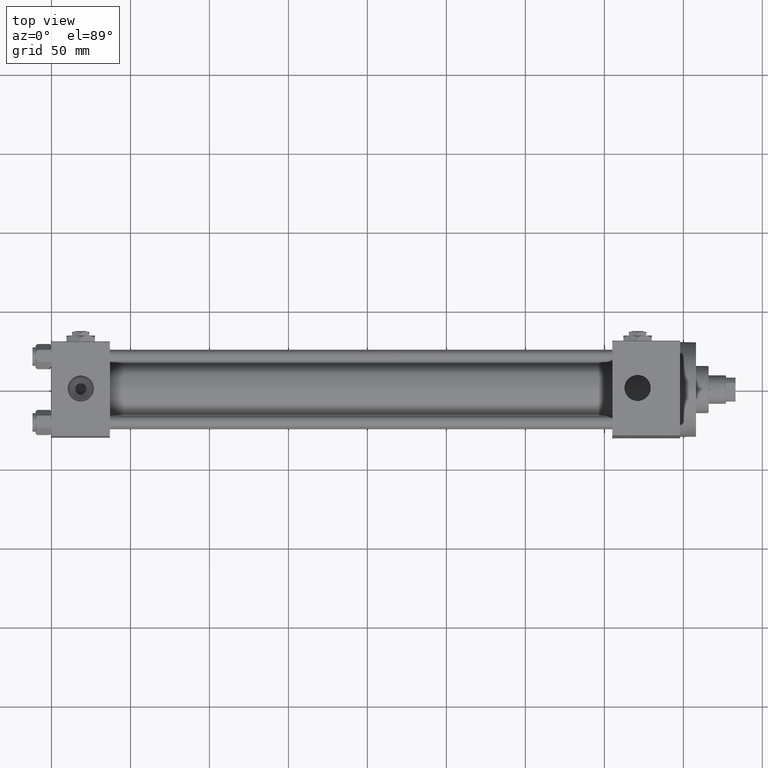
[diagram: clean part render]
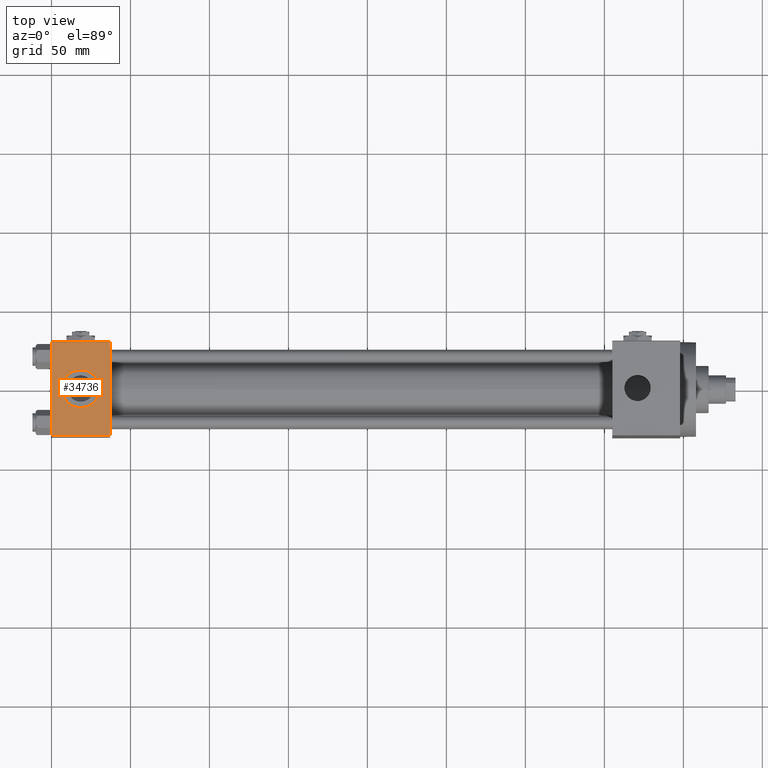
[diagram: same view with one face highlighted and labeled with its STEP entity id]
A machine part, top view. The second image highlights one B-rep face of the part: STEP entity #34736.
In plain terms, the highlighted planar face has unit normal (0, 0, -1).
Its self-contained STEP definition (entity closure, byte-faithful):
#1199 = VERTEX_POINT ( 'NONE', #3615 ) ;
#1559 = AXIS2_PLACEMENT_3D ( 'NONE', #17873, #37035, #18365 ) ;
#1744 = DIRECTION ( 'NONE',  ( 0.000000000000000000, -1.000000000000000000, -1.156482317317871725E-16 ) ) ;
#3615 = CARTESIAN_POINT ( 'NONE',  ( 0.000000000000000000, 29.49999999999999289, 30.00000000000000000 ) ) ;
#3898 = CARTESIAN_POINT ( 'NONE',  ( 30.50000000000000000, -3.469446951953614978E-15, 29.99999999999999645 ) ) ;
#5659 = LINE ( 'NONE', #27865, #40979 ) ;
#5898 = VERTEX_POINT ( 'NONE', #6574 ) ;
#6574 = CARTESIAN_POINT ( 'NONE',  ( 0.000000000000000000, -29.49999999999998579, 29.99999999999999289 ) ) ;
#6651 = AXIS2_PLACEMENT_3D ( 'NONE', #42556, #42070, #45553 ) ;
#7404 = ORIENTED_EDGE ( 'NONE', *, *, #22549, .T. ) ;
#7668 = DIRECTION ( 'NONE',  ( 0.000000000000000000, 1.000000000000000000, 1.156482317317871725E-16 ) ) ;
#8404 = ORIENTED_EDGE ( 'NONE', *, *, #22398, .F. ) ;
#8552 = CARTESIAN_POINT ( 'NONE',  ( 0.000000000000000000, 29.49999999999999289, 30.00000000000000000 ) ) ;
#9203 = EDGE_LOOP ( 'NONE', ( #7404, #45040, #29925, #25383 ) ) ;
#9484 = CARTESIAN_POINT ( 'NONE',  ( 37.00000000000000000, 29.99999999999999289, 30.00000000000000000 ) ) ;
#10739 = EDGE_CURVE ( 'NONE', #36564, #31595, #13510, .T. ) ;
#12747 = LINE ( 'NONE', #9484, #36283 ) ;
#13510 = CIRCLE ( 'NONE', #1559, 12.00000000000000000 ) ;
#17873 = CARTESIAN_POINT ( 'NONE',  ( 18.50000000000000000, -3.469446951953614978E-15, 29.99999999999999645 ) ) ;
#18365 = DIRECTION ( 'NONE',  ( 1.000000000000000000, 0.000000000000000000, 0.000000000000000000 ) ) ;
#18655 = DIRECTION ( 'NONE',  ( 0.000000000000000000, 1.156482317317871725E-16, -1.000000000000000000 ) ) ;
#19388 = FACE_BOUND ( 'NONE', #35757, .T. ) ;
#19478 = VECTOR ( 'NONE', #46936, 1000.000000000000000 ) ;
#22398 = EDGE_CURVE ( 'NONE', #31595, #36564, #22678, .T. ) ;
#22456 = CARTESIAN_POINT ( 'NONE',  ( 37.00000000000000000, 29.49999999999999289, 30.00000000000000000 ) ) ;
#22549 = EDGE_CURVE ( 'NONE', #1199, #5898, #5659, .T. ) ;
#22678 = CIRCLE ( 'NONE', #6651, 12.00000000000000000 ) ;
#22946 = ORIENTED_EDGE ( 'NONE', *, *, #10739, .F. ) ;
#23768 = DIRECTION ( 'NONE',  ( -1.000000000000000000, 0.000000000000000000, 0.000000000000000000 ) ) ;
#23798 = AXIS2_PLACEMENT_3D ( 'NONE', #29874, #18655, #7668 ) ;
#24806 = CARTESIAN_POINT ( 'NONE',  ( 6.499999999999997335, -1.999870792976790833E-15, 29.99999999999999645 ) ) ;
#25383 = ORIENTED_EDGE ( 'NONE', *, *, #41184, .T. ) ;
#27548 = VECTOR ( 'NONE', #23768, 1000.000000000000000 ) ;
#27865 = CARTESIAN_POINT ( 'NONE',  ( 0.000000000000000000, 29.99999999999999289, 30.00000000000000000 ) ) ;
#28016 = LINE ( 'NONE', #43192, #19478 ) ;
#29218 = CARTESIAN_POINT ( 'NONE',  ( 37.00000000000000000, -29.49999999999998579, 29.99999999999999289 ) ) ;
#29874 = CARTESIAN_POINT ( 'NONE',  ( 37.00000000000000000, 29.99999999999999289, 30.00000000000000000 ) ) ;
#29925 = ORIENTED_EDGE ( 'NONE', *, *, #44478, .F. ) ;
#31595 = VERTEX_POINT ( 'NONE', #24806 ) ;
#34736 = ADVANCED_FACE ( 'NONE', ( #19388, #38075 ), #42061, .F. ) ;
#34972 = LINE ( 'NONE', #8552, #27548 ) ;
#35757 = EDGE_LOOP ( 'NONE', ( #22946, #8404 ) ) ;
#35937 = VERTEX_POINT ( 'NONE', #29218 ) ;
#36283 = VECTOR ( 'NONE', #1744, 1000.000000000000000 ) ;
#36564 = VERTEX_POINT ( 'NONE', #3898 ) ;
#37035 = DIRECTION ( 'NONE',  ( 0.000000000000000000, 0.000000000000000000, 1.000000000000000000 ) ) ;
#37968 = EDGE_CURVE ( 'NONE', #5898, #35937, #28016, .T. ) ;
#38075 = FACE_OUTER_BOUND ( 'NONE', #9203, .T. ) ;
#40979 = VECTOR ( 'NONE', #43042, 1000.000000000000000 ) ;
#41184 = EDGE_CURVE ( 'NONE', #49008, #1199, #34972, .T. ) ;
#42061 = PLANE ( 'NONE',  #23798 ) ;
#42070 = DIRECTION ( 'NONE',  ( 0.000000000000000000, 0.000000000000000000, 1.000000000000000000 ) ) ;
#42556 = CARTESIAN_POINT ( 'NONE',  ( 18.50000000000000000, -3.469446951953614978E-15, 29.99999999999999645 ) ) ;
#43042 = DIRECTION ( 'NONE',  ( 0.000000000000000000, -1.000000000000000000, -1.156482317317871725E-16 ) ) ;
#43192 = CARTESIAN_POINT ( 'NONE',  ( 37.00000000000000000, -29.50000000000000000, 29.99999999999999289 ) ) ;
#44478 = EDGE_CURVE ( 'NONE', #49008, #35937, #12747, .T. ) ;
#45040 = ORIENTED_EDGE ( 'NONE', *, *, #37968, .T. ) ;
#45553 = DIRECTION ( 'NONE',  ( 1.000000000000000000, 0.000000000000000000, 0.000000000000000000 ) ) ;
#46936 = DIRECTION ( 'NONE',  ( 1.000000000000000000, 0.000000000000000000, 0.000000000000000000 ) ) ;
#49008 = VERTEX_POINT ( 'NONE', #22456 ) ;